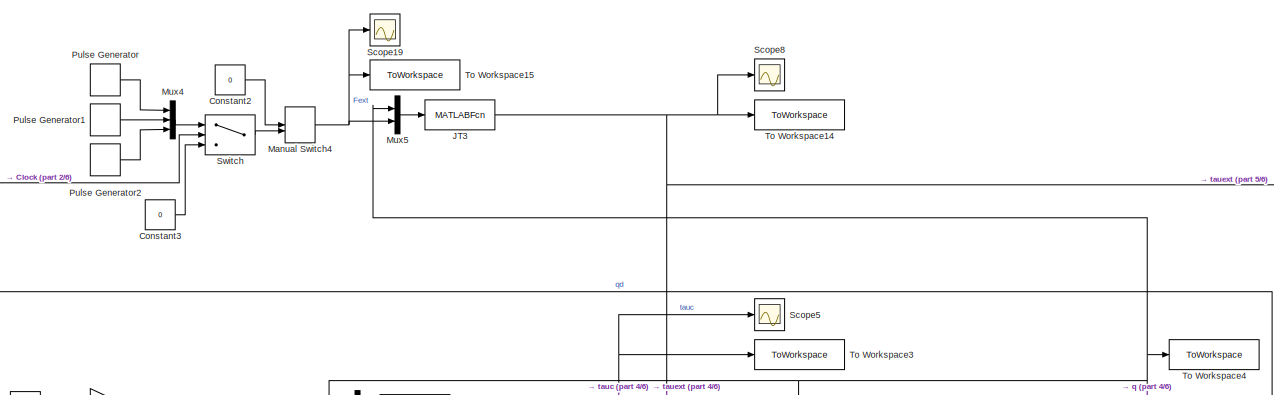
[diagram: root canvas - part 1/6, top center region]
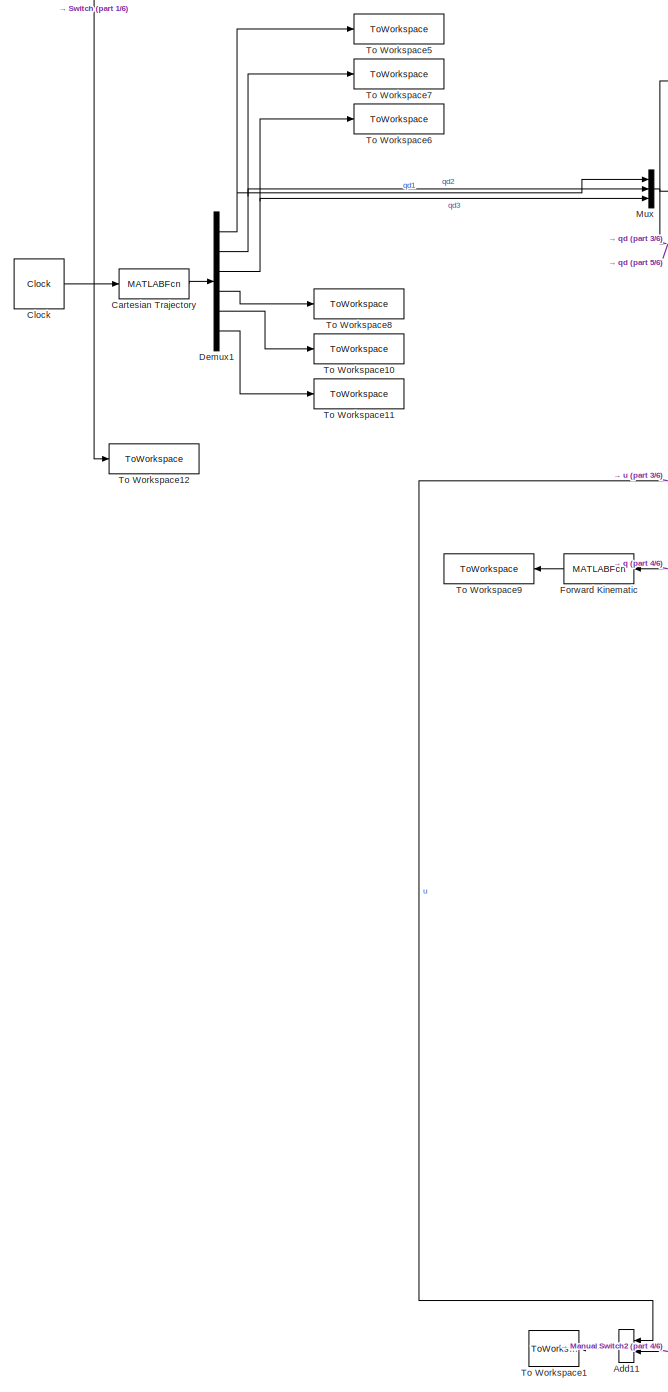
[diagram: root canvas - part 2/6, left side, full height]
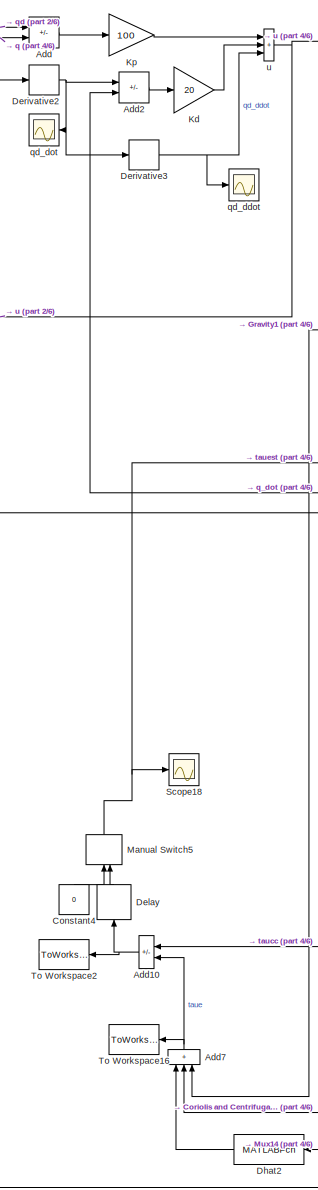
[diagram: root canvas - part 3/6, central region]
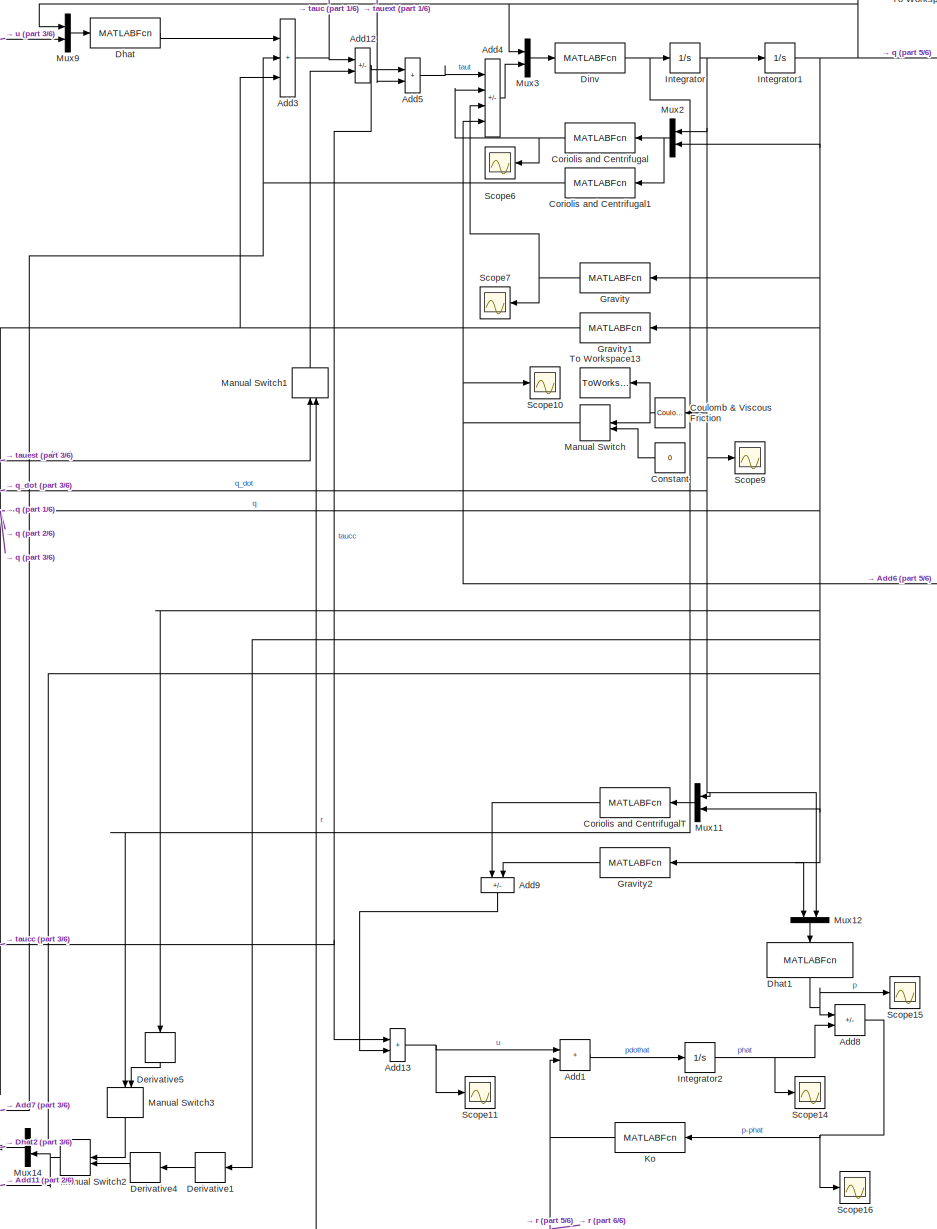
[diagram: root canvas - part 4/6, middle right region]
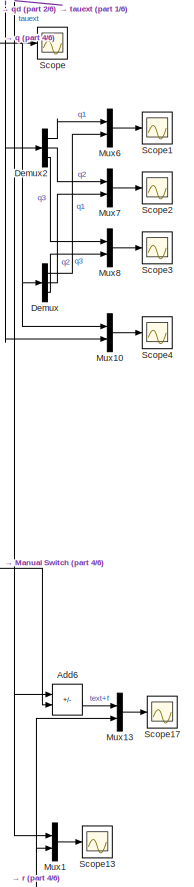
[diagram: root canvas - part 5/6, middle right region]
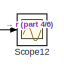
[diagram: root canvas - part 6/6, bottom right region]
MODEL slx_8e0c6ed6476b
KIND model
CONFIG AbsTol = auto
CONFIG EnableMultiTasking = off
CONFIG FixedStep = auto
CONFIG MaxStep = auto
CONFIG MinStep = auto
CONFIG RelTol = 1e-3
CONFIG SampleTimeConstraint = Unconstrained
CONFIG SolverName = FixedStepAuto
CONFIG StartTime = 0.0
CONFIG StopTime = 2*pi
BLOCK [Sum] Add
  IconShape = rectangular
  Inputs = +-
BLOCK [Sum] Add1
  IconShape = rectangular
BLOCK [Sum] Add10
  IconShape = rectangular
  Inputs = -+
BLOCK [Sum] Add11
  IconShape = rectangular
  Inputs = +-
BLOCK [Sum] Add12
  IconShape = rectangular
  Inputs = +-
BLOCK [Sum] Add13
  IconShape = rectangular
  NameLocation = top
BLOCK [Sum] Add2
  IconShape = rectangular
  Inputs = +-
BLOCK [Sum] Add3
  IconShape = rectangular
  Inputs = +++
BLOCK [Sum] Add4
  IconShape = rectangular
  Inputs = +---
BLOCK [Sum] Add5
  IconShape = rectangular
BLOCK [Sum] Add6
  IconShape = rectangular
  Inputs = +-
BLOCK [Sum] Add7
  IconShape = rectangular
  Inputs = +++
  NameLocation = left
BLOCK [Sum] Add8
  IconShape = rectangular
  Inputs = +-
BLOCK [Sum] Add9
  IconShape = rectangular
  Inputs = +-
  NameLocation = right
BLOCK [MATLABFcn] Cartesian Trajectory
  MATLABFcn = Cartesian_trajectory(u)
  Output1D = off
  OutputDimensions = 6
BLOCK [Clock] Clock
  Decimation = 1
BLOCK [Constant] Constant
  Value = 0
BLOCK [Constant] Constant2
  Value = 0
BLOCK [Constant] Constant3
  Value = 0
BLOCK [Constant] Constant4
  NameLocation = right
  Value = 0
BLOCK [MATLABFcn] Coriolis and Centrifugal
  MATLABFcn = Coriolis3(u)
  Output1D = off
  OutputDimensions = 3
BLOCK [MATLABFcn] Coriolis and Centrifugal1
  MATLABFcn = Coriolis3(u)
  Output1D = off
  OutputDimensions = 3
BLOCK [MATLABFcn] Coriolis and CentrifugalT
  MATLABFcn = CoriolisT3(u)
  Output1D = off
  OutputDimensions = 3
BLOCK [Reference] Coulomb & Viscous Friction  REF=simulink/Discontinuities/Coulomb &
Viscous Friction
  SourceBlock = simulink/Discontinuities/Coulomb &\nViscous Friction
  SourceType = Coulombic and Viscous Friction
BLOCK [Delay] Delay
  DelayLength = 1
  InitialCondition = 0
  InputPortMap = u0
  NameLocation = left
BLOCK [Demux] Demux
  Outputs = 3
BLOCK [Demux] Demux1
  Outputs = 6
BLOCK [Demux] Demux2
  Outputs = 3
BLOCK [Derivative] Derivative1
BLOCK [Derivative] Derivative2
BLOCK [Derivative] Derivative3
BLOCK [Derivative] Derivative4
BLOCK [Derivative] Derivative5
  NameLocation = right
BLOCK [MATLABFcn] Dhat
  MATLABFcn = Dhat3(u)
  Output1D = off
  OutputDimensions = 3
BLOCK [MATLABFcn] Dhat1
  MATLABFcn = Dhat3(u)
  NameLocation = left
  Output1D = off
  OutputDimensions = 3
BLOCK [MATLABFcn] Dhat2
  MATLABFcn = Dhat3(u)
  Output1D = off
  OutputDimensions = 3
BLOCK [MATLABFcn] Dinv
  MATLABFcn = Dinv3(u)
  Output1D = off
  OutputDimensions = 3
BLOCK [MATLABFcn] Forward Kinematic
  MATLABFcn = Forward_kin3(u)
  Output1D = off
  OutputDimensions = 3
BLOCK [MATLABFcn] Gravity
  MATLABFcn = Gravity3(u)
  Output1D = off
  OutputDimensions = 3
BLOCK [MATLABFcn] Gravity1
  MATLABFcn = Gravity3(u)
  Output1D = off
  OutputDimensions = 3
BLOCK [MATLABFcn] Gravity2
  MATLABFcn = Gravity3(u)
  Output1D = off
  OutputDimensions = 3
BLOCK [Integrator] Integrator
  InitialCondition = [0;0;0];
BLOCK [Integrator] Integrator1
  InitialCondition = [0.9587;0.7246;-1.1694]
BLOCK [Integrator] Integrator2
  InitialCondition = [0;0;0];
BLOCK [MATLABFcn] JT3
  MATLABFcn = Dhat3(u)
  Output1D = off
  OutputDimensions = 3
BLOCK [Gain] Kd
  Gain = 20
BLOCK [MATLABFcn] Ko
  MATLABFcn = Ko3(u)
  Output1D = off
  OutputDimensions = 3
BLOCK [Gain] Kp
  Gain = 100
BLOCK [ManualSwitch] Manual Switch
BLOCK [ManualSwitch] Manual Switch1
  NameLocation = left
BLOCK [ManualSwitch] Manual Switch2
BLOCK [ManualSwitch] Manual Switch3
  NameLocation = right
BLOCK [ManualSwitch] Manual Switch4
  CurrentSetting = 0
  NameLocation = top
BLOCK [ManualSwitch] Manual Switch5
  CurrentSetting = 0
  NameLocation = left
BLOCK [Mux] Mux
  DisplayOption = bar
  Inputs = 3
BLOCK [Mux] Mux1
  DisplayOption = bar
  Inputs = 2
BLOCK [Mux] Mux10
  DisplayOption = bar
  Inputs = 2
BLOCK [Mux] Mux11
  DisplayOption = bar
  Inputs = 2
BLOCK [Mux] Mux12
  DisplayOption = bar
  Inputs = 2
  NameLocation = left
BLOCK [Mux] Mux13
  DisplayOption = bar
  Inputs = 2
BLOCK [Mux] Mux14
  DisplayOption = bar
  Inputs = 2
BLOCK [Mux] Mux2
  DisplayOption = bar
  Inputs = 2
BLOCK [Mux] Mux3
  DisplayOption = bar
  Inputs = 2
BLOCK [Mux] Mux4
  DisplayOption = bar
  Inputs = 3
BLOCK [Mux] Mux5
  DisplayOption = bar
  Inputs = 2
BLOCK [Mux] Mux6
  DisplayOption = bar
  Inputs = 2
BLOCK [Mux] Mux7
  DisplayOption = bar
  Inputs = 2
BLOCK [Mux] Mux8
  DisplayOption = bar
  Inputs = 2
BLOCK [Mux] Mux9
  DisplayOption = bar
  Inputs = 2
BLOCK [DiscretePulseGenerator] Pulse Generator
  Amplitude = 10
  PhaseDelay = 2
  PulseType = Time based
  PulseWidth = 2
BLOCK [DiscretePulseGenerator] Pulse Generator1
  Amplitude = 10
  PhaseDelay = 3
  PulseType = Time based
BLOCK [DiscretePulseGenerator] Pulse Generator2
  Amplitude = 30
  PhaseDelay = 1
  PulseType = Time based
  PulseWidth = 20
BLOCK [Scope] Scope
  Floating = off
  NumInputPorts = 1
  ScopeSpecificationString = Simulink.scopes.TimeScopeBlockCfg('CurrentConfiguration', extmgr.ConfigurationSet(extmgr.Configuration('Core','General UI',true,'FigureColor',[1 1 1]),extmgr.Configuration('Core','Source UI',true),extmgr.Configuration('Sources','WiredSimulink',true),extmgr.Configuration('Visuals','Time Domain',true,'SerializedDisplays',{struct('MinYLimReal','-2.59832','MaxYLimReal','1.54475','YLabelReal','','MinYL...<+1562ch>
BLOCK [Scope] Scope1
  Floating = off
  NumInputPorts = 1
  ScopeSpecificationString = Simulink.scopes.TimeScopeBlockCfg('CurrentConfiguration', extmgr.ConfigurationSet(extmgr.Configuration('Core','General UI',true,'FigureColor',[1 1 1]),extmgr.Configuration('Core','Source UI',true),extmgr.Configuration('Sources','WiredSimulink',true,'DataLoggingVariableName','ScopeData1'),extmgr.Configuration('Visuals','Time Domain',true,'SerializedDisplays',{struct('MinYLimReal','0.3873','MaxYLimR...<+1740ch>
BLOCK [Scope] Scope10
  Floating = off
  NumInputPorts = 1
  ScopeSpecificationString = Simulink.scopes.TimeScopeBlockCfg('CurrentConfiguration', extmgr.ConfigurationSet(extmgr.Configuration('Core','General UI',true,'FigureColor',[1 1 1]),extmgr.Configuration('Core','Source UI',true),extmgr.Configuration('Sources','WiredSimulink',true,'DataLoggingVariableName','ScopeData2'),extmgr.Configuration('Visuals','Time Domain',true,'SerializedDisplays',{struct('MinYLimReal','-8.43959','MaxYLi...<+1569ch>
BLOCK [Scope] Scope11
  Floating = off
  NumInputPorts = 1
  ScopeSpecificationString = Simulink.scopes.TimeScopeBlockCfg('CurrentConfiguration', extmgr.ConfigurationSet(extmgr.Configuration('Core','General UI',true,'FigureColor',[1 1 1]),extmgr.Configuration('Core','Source UI',true),extmgr.Configuration('Sources','WiredSimulink',true,'DataLoggingVariableName','ScopeData1'),extmgr.Configuration('Visuals','Time Domain',true,'SerializedDisplays',{struct('MinYLimReal','-0.75514','MaxYLi...<+1545ch>
BLOCK [Scope] Scope12
  Floating = off
  NumInputPorts = 1
  ScopeSpecificationString = Simulink.scopes.TimeScopeBlockCfg('CurrentConfiguration', extmgr.ConfigurationSet(extmgr.Configuration('Core','General UI',true,'FigureColor',[1 1 1]),extmgr.Configuration('Core','Source UI',true),extmgr.Configuration('Sources','WiredSimulink',true,'DataLoggingVariableName','ScopeData4'),extmgr.Configuration('Visuals','Time Domain',true,'SerializedDisplays',{struct('MinYLimReal','-11.6936','MaxYLi...<+1537ch>
BLOCK [Scope] Scope13
  Floating = off
  NumInputPorts = 1
  ScopeSpecificationString = Simulink.scopes.TimeScopeBlockCfg('CurrentConfiguration', extmgr.ConfigurationSet(extmgr.Configuration('Core','General UI',true,'FigureColor',[1 1 1]),extmgr.Configuration('Core','Source UI',true),extmgr.Configuration('Sources','WiredSimulink',true,'DataLoggingVariableName','ScopeData5'),extmgr.Configuration('Visuals','Time Domain',true,'SerializedDisplays',{struct('MinYLimReal','-11.6936','MaxYLi...<+1736ch>
BLOCK [Scope] Scope14
  Floating = off
  NumInputPorts = 1
  ScopeSpecificationString = Simulink.scopes.TimeScopeBlockCfg('CurrentConfiguration', extmgr.ConfigurationSet(extmgr.Configuration('Core','General UI',true,'FigureColor',[1 1 1]),extmgr.Configuration('Core','Source UI',true),extmgr.Configuration('Sources','WiredSimulink',true,'DataLoggingVariableName','ScopeData6'),extmgr.Configuration('Visuals','Time Domain',true,'SerializedDisplays',{struct('MinYLimReal','-5.10466','MaxYLi...<+1537ch>
BLOCK [Scope] Scope15
  Floating = off
  NumInputPorts = 1
  ScopeSpecificationString = Simulink.scopes.TimeScopeBlockCfg('CurrentConfiguration', extmgr.ConfigurationSet(extmgr.Configuration('Core','General UI',true,'FigureColor',[1 1 1]),extmgr.Configuration('Core','Source UI',true),extmgr.Configuration('Sources','WiredSimulink',true,'DataLoggingVariableName','ScopeData7'),extmgr.Configuration('Visuals','Time Domain',true,'SerializedDisplays',{struct('MinYLimReal','-0.35807','MaxYLi...<+1533ch>
BLOCK [Scope] Scope16
  Floating = off
  NumInputPorts = 1
  ScopeSpecificationString = Simulink.scopes.TimeScopeBlockCfg('CurrentConfiguration', extmgr.ConfigurationSet(extmgr.Configuration('Core','General UI',true,'FigureColor',[1 1 1]),extmgr.Configuration('Core','Source UI',true),extmgr.Configuration('Sources','WiredSimulink',true,'DataLoggingVariableName','ScopeData8'),extmgr.Configuration('Visuals','Time Domain',true,'SerializedDisplays',{struct('MinYLimReal','-0.0238','MaxYLim...<+1546ch>
BLOCK [Scope] Scope17
  Floating = off
  NumInputPorts = 1
  ScopeSpecificationString = Simulink.scopes.TimeScopeBlockCfg('CurrentConfiguration', extmgr.ConfigurationSet(extmgr.Configuration('Core','General UI',true,'FigureColor',[1 1 1]),extmgr.Configuration('Core','Source UI',true),extmgr.Configuration('Sources','WiredSimulink',true,'DataLoggingVariableName','ScopeData9'),extmgr.Configuration('Visuals','Time Domain',true,'SerializedDisplays',{struct('MinYLimReal','-11.74474','MaxYL...<+1738ch>
BLOCK [Scope] Scope18
  Floating = off
  NumInputPorts = 1
  ScopeSpecificationString = Simulink.scopes.TimeScopeBlockCfg('CurrentConfiguration', extmgr.ConfigurationSet(extmgr.Configuration('Core','General UI',true,'FigureColor',[1 1 1]),extmgr.Configuration('Core','Source UI',true),extmgr.Configuration('Sources','WiredSimulink',true,'DataLoggingVariableName','ScopeData1'),extmgr.Configuration('Visuals','Time Domain',true,'SerializedDisplays',{struct('MinYLimReal','-23.38499','MaxYL...<+1720ch>
BLOCK [Scope] Scope19
  Floating = off
  NumInputPorts = 1
  ScopeSpecificationString = Simulink.scopes.TimeScopeBlockCfg('CurrentConfiguration', extmgr.ConfigurationSet(extmgr.Configuration('Core','General UI',true,'FigureColor',[1 1 1]),extmgr.Configuration('Core','Source UI',true),extmgr.Configuration('Sources','WiredSimulink',true,'DataLoggingVariableName','ScopeData3'),extmgr.Configuration('Visuals','Time Domain',true,'SerializedDisplays',{struct('MinYLimReal','-3.75','MaxYLimRe...<+1621ch>
BLOCK [Scope] Scope2
  Floating = off
  NumInputPorts = 1
  ScopeSpecificationString = Simulink.scopes.TimeScopeBlockCfg('CurrentConfiguration', extmgr.ConfigurationSet(extmgr.Configuration('Core','General UI',true,'FigureColor',[1 1 1]),extmgr.Configuration('Core','Source UI',true),extmgr.Configuration('Sources','WiredSimulink',true,'DataLoggingVariableName','ScopeData2'),extmgr.Configuration('Visuals','Time Domain',true,'SerializedDisplays',{struct('MinYLimReal','0.47696','MaxYLim...<+1615ch>
BLOCK [Scope] Scope3
  Floating = off
  NumInputPorts = 1
  ScopeSpecificationString = Simulink.scopes.TimeScopeBlockCfg('CurrentConfiguration', extmgr.ConfigurationSet(extmgr.Configuration('Core','General UI',true,'FigureColor',[1 1 1]),extmgr.Configuration('Core','Source UI',true),extmgr.Configuration('Sources','WiredSimulink',true,'DataLoggingVariableName','ScopeData3'),extmgr.Configuration('Visuals','Time Domain',true,'SerializedDisplays',{struct('MinYLimReal','-2.38745','MaxYLi...<+1627ch>
BLOCK [Scope] Scope4
  Floating = off
  NumInputPorts = 1
  ScopeSpecificationString = Simulink.scopes.TimeScopeBlockCfg('CurrentConfiguration', extmgr.ConfigurationSet(extmgr.Configuration('Core','General UI',true,'FigureColor',[1 1 1]),extmgr.Configuration('Core','Source UI',true),extmgr.Configuration('Sources','WiredSimulink',true,'DataLoggingVariableName','ScopeData1'),extmgr.Configuration('Visuals','Time Domain',true,'SerializedDisplays',{struct('MinYLimReal','-2.59841','MaxYLi...<+1933ch>
BLOCK [Scope] Scope5
  Floating = off
  NumInputPorts = 1
  ScopeSpecificationString = Simulink.scopes.TimeScopeBlockCfg('CurrentConfiguration', extmgr.ConfigurationSet(extmgr.Configuration('Core','General UI',true,'FigureColor',[1 1 1]),extmgr.Configuration('Core','Source UI',true),extmgr.Configuration('Sources','WiredSimulink',true,'DataLoggingVariableName','ScopeData1'),extmgr.Configuration('Visuals','Time Domain',true,'SerializedDisplays',{struct('MinYLimReal','-260.56015','MaxY...<+1647ch>
BLOCK [Scope] Scope6
  Floating = off
  NumInputPorts = 1
  ScopeSpecificationString = Simulink.scopes.TimeScopeBlockCfg('CurrentConfiguration', extmgr.ConfigurationSet(extmgr.Configuration('Core','General UI',true,'FigureColor',[1 1 1]),extmgr.Configuration('Core','Source UI',true),extmgr.Configuration('Sources','WiredSimulink',true,'DataLoggingVariableName','ScopeData2'),extmgr.Configuration('Visuals','Time Domain',true,'SerializedDisplays',{struct('MinYLimReal','-0.34403','MaxYLi...<+1603ch>
BLOCK [Scope] Scope7
  Floating = off
  NumInputPorts = 1
  ScopeSpecificationString = Simulink.scopes.TimeScopeBlockCfg('CurrentConfiguration', extmgr.ConfigurationSet(extmgr.Configuration('Core','General UI',true,'FigureColor',[1 1 1]),extmgr.Configuration('Core','Source UI',true),extmgr.Configuration('Sources','WiredSimulink',true,'DataLoggingVariableName','ScopeData3'),extmgr.Configuration('Visuals','Time Domain',true,'SerializedDisplays',{struct('MinYLimReal','-7.29976','MaxYLi...<+1555ch>
BLOCK [Scope] Scope8
  Floating = off
  NumInputPorts = 1
  ScopeSpecificationString = Simulink.scopes.TimeScopeBlockCfg('CurrentConfiguration', extmgr.ConfigurationSet(extmgr.Configuration('Core','General UI',true,'FigureColor',[1 1 1]),extmgr.Configuration('Core','Source UI',true),extmgr.Configuration('Sources','WiredSimulink',true,'DataLoggingVariableName','ScopeData2'),extmgr.Configuration('Visuals','Time Domain',true,'SerializedDisplays',{struct('MinYLimReal','-1.5536','MaxYLim...<+1643ch>
BLOCK [Scope] Scope9
  Floating = off
  NumInputPorts = 1
  ScopeSpecificationString = Simulink.scopes.TimeScopeBlockCfg('CurrentConfiguration', extmgr.ConfigurationSet(extmgr.Configuration('Core','General UI',true,'FigureColor',[1 1 1]),extmgr.Configuration('Core','Source UI',true),extmgr.Configuration('Sources','WiredSimulink',true,'DataLoggingVariableName','ScopeData2'),extmgr.Configuration('Visuals','Time Domain',true,'SerializedDisplays',{struct('MinYLimReal','-0.72986','MaxYLi...<+1545ch>
BLOCK [Switch] Switch
  Criteria = u2 > Threshold
  InputSameDT = off
  SaturateOnIntegerOverflow = off
BLOCK [ToWorkspace] To Workspace1
  FixptAsFi = on
  MaxDataPoints = inf
  SampleTime = 0.001
  SaveFormat = Timeseries
  VariableName = ep
BLOCK [ToWorkspace] To Workspace10
  FixptAsFi = on
  MaxDataPoints = inf
  SampleTime = 0.001
  VariableName = yd
BLOCK [ToWorkspace] To Workspace11
  FixptAsFi = on
  MaxDataPoints = inf
  SampleTime = 0.001
  VariableName = zd
BLOCK [ToWorkspace] To Workspace12
  FixptAsFi = on
  MaxDataPoints = inf
  SampleTime = 0.001
  SaveFormat = Timeseries
  VariableName = t
BLOCK [ToWorkspace] To Workspace13
  FixptAsFi = on
  MaxDataPoints = inf
  SampleTime = 0.001
  SaveFormat = Timeseries
  VariableName = tauf
BLOCK [ToWorkspace] To Workspace14
  FixptAsFi = on
  MaxDataPoints = inf
  SampleTime = 0.001
  SaveFormat = Timeseries
  VariableName = tauext
BLOCK [ToWorkspace] To Workspace15
  FixptAsFi = on
  MaxDataPoints = inf
  SampleTime = 0.001
  SaveFormat = Timeseries
  VariableName = Fext
BLOCK [ToWorkspace] To Workspace16
  FixptAsFi = on
  MaxDataPoints = inf
  SampleTime = 0.001
  SaveFormat = Timeseries
  VariableName = taue
BLOCK [ToWorkspace] To Workspace2
  FixptAsFi = on
  MaxDataPoints = inf
  SampleTime = 0.001
  SaveFormat = Timeseries
  VariableName = taudhat
BLOCK [ToWorkspace] To Workspace3
  FixptAsFi = on
  MaxDataPoints = inf
  SampleTime = 0.001
  SaveFormat = Timeseries
  VariableName = tauc
BLOCK [ToWorkspace] To Workspace4
  FixptAsFi = on
  MaxDataPoints = inf
  SampleTime = 0.001
  SaveFormat = Timeseries
  VariableName = q
BLOCK [ToWorkspace] To Workspace5
  FixptAsFi = on
  MaxDataPoints = inf
  SampleTime = 0.001
  SaveFormat = Timeseries
  VariableName = qd1
BLOCK [ToWorkspace] To Workspace6
  FixptAsFi = on
  MaxDataPoints = inf
  SampleTime = 0.001
  SaveFormat = Timeseries
  VariableName = qd3
BLOCK [ToWorkspace] To Workspace7
  FixptAsFi = on
  MaxDataPoints = inf
  SampleTime = 0.001
  SaveFormat = Timeseries
  VariableName = qd2
BLOCK [ToWorkspace] To Workspace8
  FixptAsFi = on
  MaxDataPoints = inf
  SampleTime = 0.001
  VariableName = xd
BLOCK [ToWorkspace] To Workspace9
  FixptAsFi = on
  MaxDataPoints = inf
  SampleTime = 0.001
  VariableName = x
BLOCK [Scope] qd_ddot
  Floating = off
  NumInputPorts = 1
  ScopeSpecificationString = Simulink.scopes.TimeScopeBlockCfg('CurrentConfiguration', extmgr.ConfigurationSet(extmgr.Configuration('Core','General UI',true,'FigureColor',[1 1 1]),extmgr.Configuration('Core','Source UI',true),extmgr.Configuration('Sources','WiredSimulink',true,'DataLoggingVariableName','ScopeData4'),extmgr.Configuration('Visuals','Time Domain',true,'SerializedDisplays',{struct('MinYLimReal','-0.3015','MaxYLim...<+1630ch>
BLOCK [Scope] qd_dot
  Floating = off
  NumInputPorts = 1
  ScopeSpecificationString = Simulink.scopes.TimeScopeBlockCfg('CurrentConfiguration', extmgr.ConfigurationSet(extmgr.Configuration('Core','General UI',true,'FigureColor',[1 1 1]),extmgr.Configuration('Core','Source UI',true),extmgr.Configuration('Sources','WiredSimulink',true,'DataLoggingVariableName','ScopeData5'),extmgr.Configuration('Visuals','Time Domain',true,'SerializedDisplays',{struct('MinYLimReal','-0.7298','MaxYLim...<+1596ch>
BLOCK [Sum] u
  IconShape = rectangular
  Inputs = +++
NET Add10:1 -> Delay:1, To Workspace2:1
LINE Add11:1 -> To Workspace1:1
NET Add12:1 -> Add10:1, Add13:1, Add5:1
NET Add13:1 -> Add1:1, Scope11:1
LINE Add1:1 -> Integrator2:1
LINE Add2:1 -> Kd:1
NET Add3:1 -> Add12:1, Scope5:1, To Workspace3:1
LINE Add4:1 -> Mux3:2
LINE Add5:1 -> Add4:1
LINE Add6:1 -> Mux13:1
NET Add7:1 -> Add10:2, To Workspace16:1
NET Add8:1 -> Ko:1, Scope16:1
LINE Add9:1 -> Add13:2
LINE Add:1 -> Kp:1
LINE Cartesian Trajectory:1 -> Demux1:1
NET Clock:1 -> Cartesian Trajectory:1, Switch:2, To Workspace12:1
LINE Constant2:1 -> Manual Switch4:1
LINE Constant3:1 -> Switch:3
LINE Constant4:1 -> Manual Switch5:1
LINE Constant:1 -> Manual Switch:2
NET Coriolis and Centrifugal1:1 -> Add3:2, Add7:2
NET Coriolis and Centrifugal:1 -> Add4:2, Scope6:1
LINE Coriolis and CentrifugalT:1 -> Add9:1
NET Coulomb & Viscous Friction:1 -> Manual Switch:1, To Workspace13:1
LINE Delay:1 -> Manual Switch5:2
NET Demux1:1 -> Mux:1, To Workspace5:1
NET Demux1:2 -> Mux:2, To Workspace7:1
NET Demux1:3 -> Mux:3, To Workspace6:1
LINE Demux1:4 -> To Workspace8:1
LINE Demux1:5 -> To Workspace10:1
LINE Demux1:6 -> To Workspace11:1
LINE Demux2:1 -> Mux6:1
LINE Demux2:2 -> Mux7:1
LINE Demux2:3 -> Mux8:1
LINE Demux:1 -> Mux6:2
LINE Demux:2 -> Mux7:2
LINE Demux:3 -> Mux8:2
LINE Derivative1:1 -> Derivative4:1
NET Derivative2:1 -> Add2:1, Derivative3:1, qd_dot:1
NET Derivative3:1 -> qd_ddot:1, u:3
LINE Derivative4:1 -> Manual Switch2:2
LINE Derivative5:1 -> Manual Switch3:2
NET Dhat1:1 -> Add8:1, Scope15:1
LINE Dhat2:1 -> Add7:1
LINE Dhat:1 -> Add3:1
NET Dinv:1 -> Integrator:1, Manual Switch3:1
LINE Forward Kinematic:1 -> To Workspace9:1
NET Gravity1:1 -> Add3:3, Add7:3
LINE Gravity2:1 -> Add9:2
NET Gravity:1 -> Add4:3, Scope7:1
NET Integrator1:1 -> Add:2, Demux:1, Derivative1:1, Derivative5:1, Forward Kinematic:1, Gravity1:1, Gravity2:1, Gravity:1, Mux10:1, Mux11:2, Mux12:1, Mux14:1, Mux2:2, Mux3:1, Mux5:1, Mux9:1, Scope:1, To Workspace4:1
NET Integrator2:1 -> Add8:2, Scope14:1
NET Integrator:1 -> Add2:2, Coulomb & Viscous Friction:1, Integrator1:1, Mux11:1, Mux12:2, Mux2:1, Scope9:1
NET JT3:1 -> Add5:2, Add6:1, Mux1:1, Scope8:1, To Workspace14:1
LINE Kd:1 -> u:2
NET Ko:1 -> Add1:2, Manual Switch1:2, Mux13:2, Mux1:2, Scope12:1
LINE Kp:1 -> u:1
LINE Manual Switch1:1 -> Add12:2
NET Manual Switch2:1 -> Add11:2, Mux14:2
LINE Manual Switch3:1 -> Manual Switch2:1
NET Manual Switch4:1 -> Mux5:2, Scope19:1, To Workspace15:1
NET Manual Switch5:1 -> Manual Switch1:1, Scope18:1
NET Manual Switch:1 -> Add4:4, Add6:2, Scope10:1
LINE Mux10:1 -> Scope4:1
LINE Mux11:1 -> Coriolis and CentrifugalT:1
LINE Mux12:1 -> Dhat1:1
LINE Mux13:1 -> Scope17:1
LINE Mux14:1 -> Dhat2:1
LINE Mux1:1 -> Scope13:1
NET Mux2:1 -> Coriolis and Centrifugal1:1, Coriolis and Centrifugal:1
LINE Mux3:1 -> Dinv:1
LINE Mux4:1 -> Switch:1
LINE Mux5:1 -> JT3:1
LINE Mux6:1 -> Scope1:1
LINE Mux7:1 -> Scope2:1
LINE Mux8:1 -> Scope3:1
LINE Mux9:1 -> Dhat:1
NET Mux:1 -> Add:1, Demux2:1, Derivative2:1, Mux10:2
LINE Pulse Generator1:1 -> Mux4:2
LINE Pulse Generator2:1 -> Mux4:3
LINE Pulse Generator:1 -> Mux4:1
LINE Switch:1 -> Manual Switch4:2
NET u:1 -> Add11:1, Mux9:2
note: NET lines group one-source signal fan-out (src -> all destinations, sorted); 1:1 wires keep LINE
